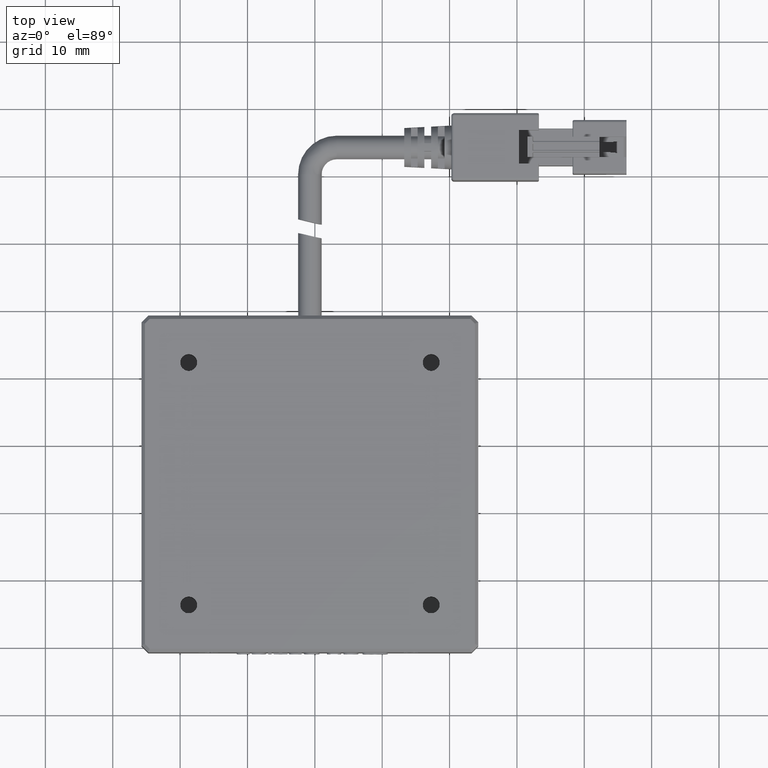
[diagram: clean part render]
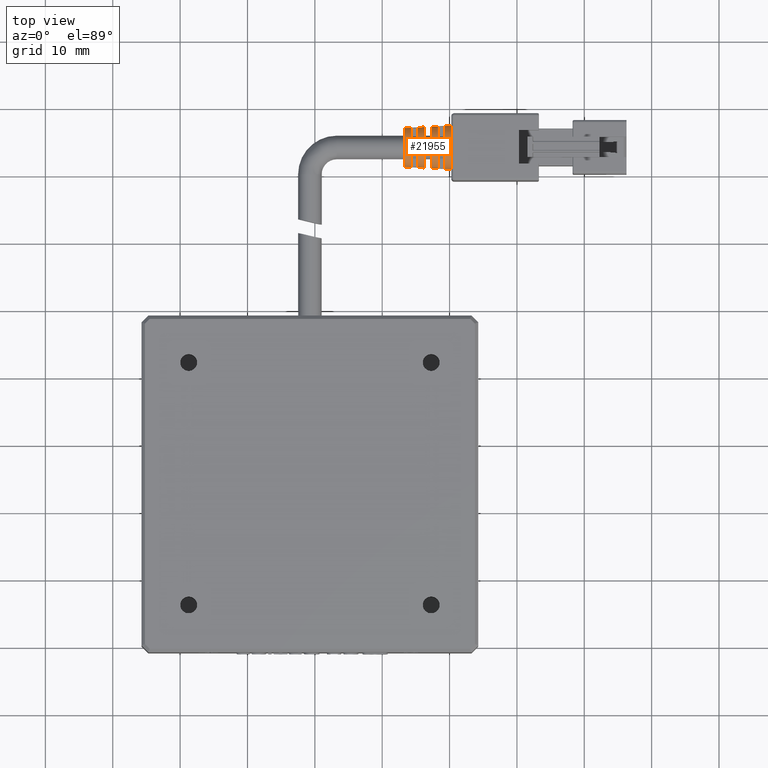
[diagram: same view with one face highlighted and labeled with its STEP entity id]
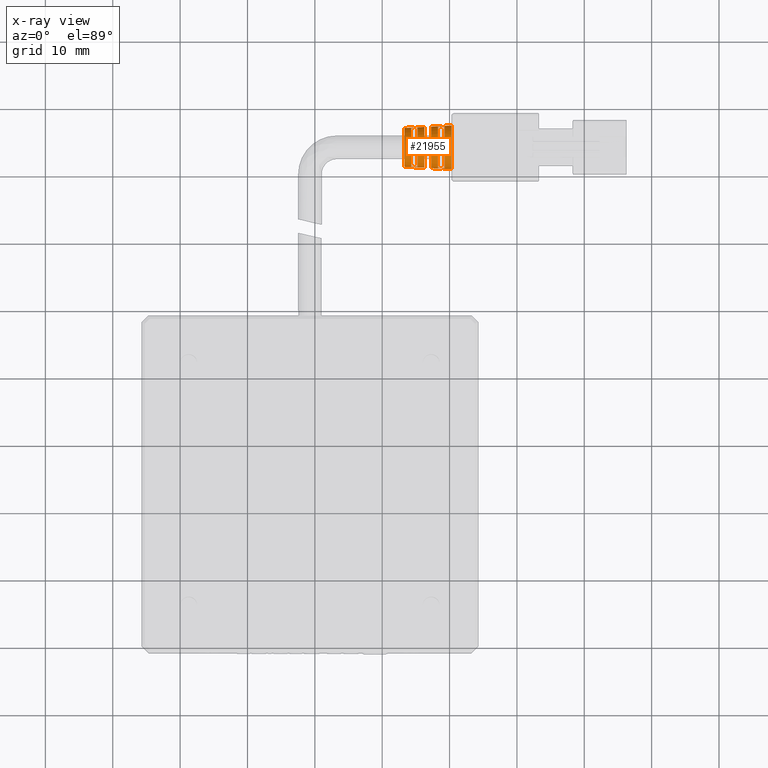
[diagram: x-ray of the same camera — body ghosted, the highlighted face saturated]
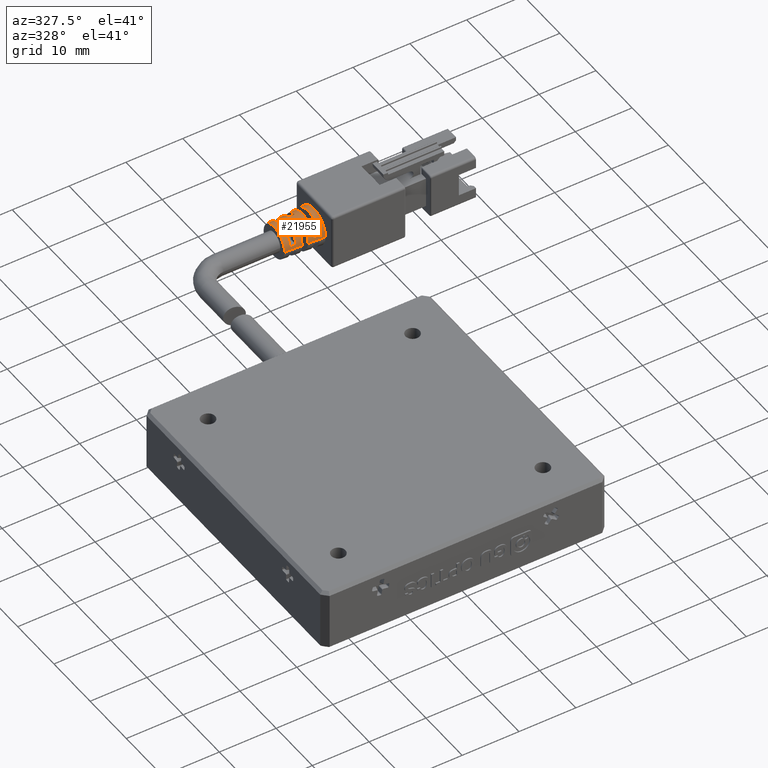
[diagram: same view with one face highlighted and labeled with its STEP entity id]
A machine part, top view. The second image highlights one B-rep face of the part: STEP entity #21955.
The next image is the same camera in x-ray: the body ghosted, the highlighted face saturated — about 0% of this face is hidden behind the body in this view.
A second angle (auxiliary view) of the same face is appended — the face is thin or edge-on in the first view.
In plain terms, the highlighted conical surface has half-angle 3 deg.
Its self-contained STEP definition (entity closure, byte-faithful):
#454 = CARTESIAN_POINT ( 'NONE',  ( 40.26702531645572200, 67.46113924050536100, -1.250000000000000900 ) ) ;
#1092 = EDGE_CURVE ( 'NONE', #28182, #5301, #14846, .T. ) ;
#1179 = B_SPLINE_CURVE_WITH_KNOTS ( 'NONE', 3,
 ( #23445, #26751, #7230, #29958 ),
 .UNSPECIFIED., .F., .F.,
 ( 4, 4 ),
 ( 1.403651546814124500E-015, 0.001001426938980516500 ),
 .UNSPECIFIED. ) ;
#1331 = DIRECTION ( 'NONE',  ( -1.000000000000000000, -0.0000000000000000000, -0.0000000000000000000 ) ) ;
#1549 = CARTESIAN_POINT ( 'NONE',  ( 40.26702531645572200, 64.21113924050634100, -1.250000000000000700 ) ) ;
#1561 = CARTESIAN_POINT ( 'NONE',  ( 33.26702531645072000, 64.21113924050634100, -1.250000000000000700 ) ) ;
#1641 = EDGE_CURVE ( 'NONE', #16105, #18689, #1179, .T. ) ;
#1700 = CARTESIAN_POINT ( 'NONE',  ( 38.60035835680047000, 61.10591946374124500, -0.6500000000000005800 ) ) ;
#1767 = CARTESIAN_POINT ( 'NONE',  ( 38.93369169520680400, 67.33414950112761200, -0.6500000000000011300 ) ) ;
#1922 = CARTESIAN_POINT ( 'NONE',  ( 39.26702531646754600, 61.07034379826750800, -0.6500000000000003600 ) ) ;
#2117 = CARTESIAN_POINT ( 'NONE',  ( 35.26702531645798900, 61.28403972792824600, -0.6500000000000011300 ) ) ;
#2400 = CARTESIAN_POINT ( 'NONE',  ( 34.26702531646981200, 67.08472120728976100, -0.6500000000000016900 ) ) ;
#2699 = DIRECTION ( 'NONE',  ( 1.000000000000000000, 0.0000000000000000000, 0.0000000000000000000 ) ) ;
#3000 = EDGE_CURVE ( 'NONE', #12893, #37839, #24078, .T. ) ;
#3253 = ORIENTED_EDGE ( 'NONE', *, *, #22560, .T. ) ;
#3297 = ORIENTED_EDGE ( 'NONE', *, *, #8633, .T. ) ;
#3675 = ORIENTED_EDGE ( 'NONE', *, *, #21201, .F. ) ;
#3766 = CARTESIAN_POINT ( 'NONE',  ( 36.60035832392478000, 63.61113924050633300, 1.748397300001395300 ) ) ;
#4403 = EDGE_CURVE ( 'NONE', #10390, #28182, #12595, .T. ) ;
#4832 = DIRECTION ( 'NONE',  ( 0.0000000000000000000, 1.000000000000000000, -6.672013369143582000E-017 ) ) ;
#4845 = DIRECTION ( 'NONE',  ( 0.0000000000000000000, 1.000000000000000000, -7.520967329303143100E-017 ) ) ;
#5301 = VERTEX_POINT ( 'NONE', #36478 ) ;
#5492 = ORIENTED_EDGE ( 'NONE', *, *, #1092, .T. ) ;
#5737 = VERTEX_POINT ( 'NONE', #35260 ) ;
#6118 = EDGE_CURVE ( 'NONE', #8930, #19131, #14750, .T. ) ;
#6156 = B_SPLINE_CURVE_WITH_KNOTS ( 'NONE', 3,
 ( #21193, #40612, #1700, #24466 ),
 .UNSPECIFIED., .F., .F.,
 ( 4, 4 ),
 ( 2.341740480690032800E-015, 0.001001423258043095100 ),
 .UNSPECIFIED. ) ;
#6171 = LINE ( 'NONE', #23978, #22484 ) ;
#6178 = EDGE_CURVE ( 'NONE', #5301, #23127, #17281, .T. ) ;
#6838 = VECTOR ( 'NONE', #19892, 1000.000000000000200 ) ;
#7045 = CARTESIAN_POINT ( 'NONE',  ( 36.26702531644617300, 63.61113924050633300, 1.730577619171422600 ) ) ;
#7230 = CARTESIAN_POINT ( 'NONE',  ( 36.60035832392478000, 64.81113924050633600, 1.748397300001394800 ) ) ;
#7293 = DIRECTION ( 'NONE',  ( -1.000000000000000000, -0.0000000000000000000, -0.0000000000000000000 ) ) ;
#7325 = AXIS2_PLACEMENT_3D ( 'NONE', #1561, #24338, #4845 ) ;
#8081 = VERTEX_POINT ( 'NONE', #1922 ) ;
#8154 = EDGE_LOOP ( 'NONE', ( #10752, #23350, #13428, #25673 ) ) ;
#8633 = EDGE_CURVE ( 'NONE', #18689, #13586, #39305, .T. ) ;
#8904 = VERTEX_POINT ( 'NONE', #12593 ) ;
#8930 = VERTEX_POINT ( 'NONE', #28904 ) ;
#9361 = EDGE_CURVE ( 'NONE', #13519, #33482, #21103, .T. ) ;
#9881 = ORIENTED_EDGE ( 'NONE', *, *, #31264, .T. ) ;
#10142 = DIRECTION ( 'NONE',  ( 1.000000000000000000, 0.0000000000000000000, 0.0000000000000000000 ) ) ;
#10247 = CARTESIAN_POINT ( 'NONE',  ( 40.26702531622834900, 67.46113924049343800, -1.250000000000000900 ) ) ;
#10351 = CARTESIAN_POINT ( 'NONE',  ( 37.26702531646699200, 63.61113924050633300, 1.784018372051399800 ) ) ;
#10390 = VERTEX_POINT ( 'NONE', #37936 ) ;
#10752 = ORIENTED_EDGE ( 'NONE', *, *, #3000, .T. ) ;
#11125 = CARTESIAN_POINT ( 'NONE',  ( 35.26702531645798900, 61.28403972792824600, -0.6500000000000011300 ) ) ;
#12593 = CARTESIAN_POINT ( 'NONE',  ( 37.26702531646982000, 67.30391590265740800, -1.250000000000000900 ) ) ;
#12595 = CIRCLE ( 'NONE', #37068, 3.040368882866448400 ) ;
#12893 = VERTEX_POINT ( 'NONE', #16320 ) ;
#13184 = CARTESIAN_POINT ( 'NONE',  ( 36.26702531644617300, 63.61113924050633300, 1.730577619171422600 ) ) ;
#13414 = EDGE_CURVE ( 'NONE', #8081, #18089, #6156, .T. ) ;
#13428 = ORIENTED_EDGE ( 'NONE', *, *, #13414, .T. ) ;
#13519 = VERTEX_POINT ( 'NONE', #2400 ) ;
#13586 = VERTEX_POINT ( 'NONE', #35067 ) ;
#14019 = CARTESIAN_POINT ( 'NONE',  ( 36.26702531644042400, 64.81113924050633600, 1.730577619171115100 ) ) ;
#14373 = CARTESIAN_POINT ( 'NONE',  ( 34.60035828589212100, 61.31971129328074700, -0.6500000000000012400 ) ) ;
#14418 = EDGE_CURVE ( 'NONE', #23127, #8930, #33812, .T. ) ;
#14437 = DIRECTION ( 'NONE',  ( -1.000000000000000000, -0.0000000000000000000, -0.0000000000000000000 ) ) ;
#14750 = CIRCLE ( 'NONE', #33084, 3.249999999999017700 ) ;
#14846 = B_SPLINE_CURVE_WITH_KNOTS ( 'NONE', 3,
 ( #7045, #3766, #23259, #10351 ),
 .UNSPECIFIED., .F., .F.,
 ( 4, 4 ),
 ( 1.945664656350847900E-015, 0.001001426938979536800 ),
 .UNSPECIFIED. ) ;
#15102 = CARTESIAN_POINT ( 'NONE',  ( 34.26702531646981200, 67.08472120728976100, -0.6500000000000016900 ) ) ;
#15175 = CARTESIAN_POINT ( 'NONE',  ( 40.26702531622834900, 60.96113924051923800, -1.250000000000000000 ) ) ;
#15612 = CARTESIAN_POINT ( 'NONE',  ( 34.26702531648391700, 64.21113924050634100, -1.250000000000000700 ) ) ;
#15938 = DIRECTION ( 'NONE',  ( 1.000000000000000000, 0.0000000000000000000, 0.0000000000000000000 ) ) ;
#16105 = VERTEX_POINT ( 'NONE', #23432 ) ;
#16320 = CARTESIAN_POINT ( 'NONE',  ( 38.26702531645094800, 67.29856295140706400, -0.6500000000000011300 ) ) ;
#16701 = AXIS2_PLACEMENT_3D ( 'NONE', #35356, #15938, #38612 ) ;
#17281 = CIRCLE ( 'NONE', #23581, 3.092776662151075500 ) ;
#17383 = AXIS2_PLACEMENT_3D ( 'NONE', #33898, #14437, #37133 ) ;
#17575 = CARTESIAN_POINT ( 'NONE',  ( 40.26702531622834900, 64.21113924050634100, -1.250000000000000700 ) ) ;
#17832 = EDGE_LOOP ( 'NONE', ( #3253, #41933, #34072, #5492, #27858, #28515, #23843, #37278, #9881, #33595, #3297, #3675 ) ) ;
#17839 = AXIS2_PLACEMENT_3D ( 'NONE', #22202, #2699, #25494 ) ;
#17891 = VECTOR ( 'NONE', #29660, 1000.000000000000200 ) ;
#18048 = ORIENTED_EDGE ( 'NONE', *, *, #40220, .T. ) ;
#18089 = VERTEX_POINT ( 'NONE', #36313 ) ;
#18220 = DIRECTION ( 'NONE',  ( 1.000000000000000000, 0.0000000000000000000, 0.0000000000000000000 ) ) ;
#18271 = FACE_BOUND ( 'NONE', #28470, .T. ) ;
#18689 = VERTEX_POINT ( 'NONE', #14019 ) ;
#18756 = EDGE_CURVE ( 'NONE', #8904, #19131, #6171, .T. ) ;
#18905 = DIRECTION ( 'NONE',  ( 0.0000000000000000000, 1.000000000000000000, 1.698940350408131500E-015 ) ) ;
#19131 = VERTEX_POINT ( 'NONE', #454 ) ;
#19156 = ORIENTED_EDGE ( 'NONE', *, *, #24068, .T. ) ;
#19892 = DIRECTION ( 'NONE',  ( 0.9986295347545816000, -0.05233595624279531500, 1.094872672590911800E-017 ) ) ;
#20667 = AXIS2_PLACEMENT_3D ( 'NONE', #20827, #1331, #24101 ) ;
#20827 = CARTESIAN_POINT ( 'NONE',  ( 38.26702531644617300, 64.21113924050634100, -1.250000000000000700 ) ) ;
#21103 = B_SPLINE_CURVE_WITH_KNOTS ( 'NONE', 3,
 ( #15102, #24779, #40928, #37798 ),
 .UNSPECIFIED., .F., .F.,
 ( 4, 4 ),
 ( 2.821323884305459600E-015, 0.001001431039903069900 ),
 .UNSPECIFIED. ) ;
#21193 = CARTESIAN_POINT ( 'NONE',  ( 39.26702531646754600, 61.07034379826750800, -0.6500000000000003600 ) ) ;
#21201 = EDGE_CURVE ( 'NONE', #29925, #13586, #35141, .T. ) ;
#21666 = CARTESIAN_POINT ( 'NONE',  ( 33.26702531645072000, 61.32799369548783400, -1.250000000000000000 ) ) ;
#21955 = ADVANCED_FACE ( 'NONE', ( #26902, #18271, #35486 ), #39015, .T. ) ;
#22202 = CARTESIAN_POINT ( 'NONE',  ( 35.26702531646027000, 64.21113924050634100, -1.250000000000000700 ) ) ;
#22484 = VECTOR ( 'NONE', #27242, 1000.000000000000200 ) ;
#22560 = EDGE_CURVE ( 'NONE', #29925, #23570, #25289, .T. ) ;
#23127 = VERTEX_POINT ( 'NONE', #25291 ) ;
#23259 = CARTESIAN_POINT ( 'NONE',  ( 36.93369166311235600, 63.61113924050633300, 1.766210776928611700 ) ) ;
#23298 = CIRCLE ( 'NONE', #16701, 3.092776662151075500 ) ;
#23350 = ORIENTED_EDGE ( 'NONE', *, *, #32603, .T. ) ;
#23432 = CARTESIAN_POINT ( 'NONE',  ( 37.26702531646277100, 64.81113924050633600, 1.784018372051174200 ) ) ;
#23445 = CARTESIAN_POINT ( 'NONE',  ( 37.26702531646277100, 64.81113924050633600, 1.784018372051174200 ) ) ;
#23570 = VERTEX_POINT ( 'NONE', #21666 ) ;
#23581 = AXIS2_PLACEMENT_3D ( 'NONE', #37622, #18220, #40904 ) ;
#23843 = ORIENTED_EDGE ( 'NONE', *, *, #6118, .T. ) ;
#23978 = CARTESIAN_POINT ( 'NONE',  ( 40.26702531622834900, 67.46113924049343800, -1.250000000000000900 ) ) ;
#24068 = EDGE_CURVE ( 'NONE', #33482, #29614, #38491, .T. ) ;
#24078 = B_SPLINE_CURVE_WITH_KNOTS ( 'NONE', 3,
 ( #27784, #24541, #1767, #31027 ),
 .UNSPECIFIED., .F., .F.,
 ( 4, 4 ),
 ( 9.453208419344606800E-016, 0.001001423258045922700 ),
 .UNSPECIFIED. ) ;
#24101 = DIRECTION ( 'NONE',  ( 0.0000000000000000000, 1.000000000000000000, -6.894363066298365700E-017 ) ) ;
#24323 = DIRECTION ( 'NONE',  ( -1.000000000000000000, -0.0000000000000000000, -0.0000000000000000000 ) ) ;
#24338 = DIRECTION ( 'NONE',  ( 1.000000000000000000, 0.0000000000000000000, 0.0000000000000000000 ) ) ;
#24466 = CARTESIAN_POINT ( 'NONE',  ( 38.26702531644808400, 61.12371552960575400, -0.6500000000000006900 ) ) ;
#24541 = CARTESIAN_POINT ( 'NONE',  ( 38.60035835680046300, 67.31635901727143800, -0.6500000000000010200 ) ) ;
#24779 = CARTESIAN_POINT ( 'NONE',  ( 34.60035828589212100, 67.10256718773193500, -0.6500000000000016900 ) ) ;
#25289 = CIRCLE ( 'NONE', #7325, 2.883145545018506200 ) ;
#25291 = CARTESIAN_POINT ( 'NONE',  ( 37.26702531646982000, 61.11836257835526000, -1.250000000000000000 ) ) ;
#25494 = DIRECTION ( 'NONE',  ( 0.0000000000000000000, 1.000000000000000000, -7.257137123938718400E-017 ) ) ;
#25673 = ORIENTED_EDGE ( 'NONE', *, *, #38894, .T. ) ;
#26584 = CARTESIAN_POINT ( 'NONE',  ( 40.26702531622834900, 60.96113924051923800, -1.250000000000000000 ) ) ;
#26751 = CARTESIAN_POINT ( 'NONE',  ( 36.93369166311235600, 64.81113924050633600, 1.766210776928611700 ) ) ;
#26809 = CARTESIAN_POINT ( 'NONE',  ( 36.26702531643662300, 64.21113924050634100, -1.250000000000000700 ) ) ;
#26902 = FACE_BOUND ( 'NONE', #8154, .T. ) ;
#27242 = DIRECTION ( 'NONE',  ( 0.9986295347545816000, 0.05233595624279531500, -4.539420596603596700E-018 ) ) ;
#27784 = CARTESIAN_POINT ( 'NONE',  ( 38.26702531645094800, 67.29856295140706400, -0.6500000000000011300 ) ) ;
#27858 = ORIENTED_EDGE ( 'NONE', *, *, #6178, .T. ) ;
#28182 = VERTEX_POINT ( 'NONE', #13184 ) ;
#28470 = EDGE_LOOP ( 'NONE', ( #40722, #19156, #36707, #18048 ) ) ;
#28515 = ORIENTED_EDGE ( 'NONE', *, *, #14418, .T. ) ;
#28904 = CARTESIAN_POINT ( 'NONE',  ( 40.26702531645572200, 60.96113924050732900, -1.250000000000000000 ) ) ;
#29543 = CARTESIAN_POINT ( 'NONE',  ( 39.26702531647936900, 64.21113924050634100, -1.250000000000000700 ) ) ;
#29614 = VERTEX_POINT ( 'NONE', #2117 ) ;
#29660 = DIRECTION ( 'NONE',  ( 0.9986295347545816000, 0.05233595624279531500, -4.539420596603596700E-018 ) ) ;
#29925 = VERTEX_POINT ( 'NONE', #36702 ) ;
#29958 = CARTESIAN_POINT ( 'NONE',  ( 36.26702531644042400, 64.81113924050633600, 1.730577619171115100 ) ) ;
#30019 = DIRECTION ( 'NONE',  ( 0.0000000000000000000, 1.000000000000000000, 1.711690465343780600E-015 ) ) ;
#30543 = CARTESIAN_POINT ( 'NONE',  ( 34.93369162600836100, 61.30187223562795400, -0.6500000000000011300 ) ) ;
#30584 = DIRECTION ( 'NONE',  ( 0.0000000000000000000, 1.000000000000000000, -6.672013369168055200E-017 ) ) ;
#30873 = CIRCLE ( 'NONE', #20667, 3.145184441432733000 ) ;
#31027 = CARTESIAN_POINT ( 'NONE',  ( 39.26702531647462300, 67.35193468274553700, -0.6500000000000010200 ) ) ;
#31264 = EDGE_CURVE ( 'NONE', #8904, #16105, #23298, .T. ) ;
#32176 = VECTOR ( 'NONE', #34765, 1000.000000000000200 ) ;
#32324 = AXIS2_PLACEMENT_3D ( 'NONE', #17575, #33741, #30584 ) ;
#32603 = EDGE_CURVE ( 'NONE', #37839, #8081, #41597, .T. ) ;
#32822 = DIRECTION ( 'NONE',  ( 0.0000000000000000000, 1.000000000000000000, -6.781366088276698700E-017 ) ) ;
#33084 = AXIS2_PLACEMENT_3D ( 'NONE', #1549, #24323, #4832 ) ;
#33482 = VERTEX_POINT ( 'NONE', #41146 ) ;
#33595 = ORIENTED_EDGE ( 'NONE', *, *, #1641, .T. ) ;
#33741 = DIRECTION ( 'NONE',  ( 1.000000000000000000, 0.0000000000000000000, 0.0000000000000000000 ) ) ;
#33812 = LINE ( 'NONE', #26584, #6838 ) ;
#33898 = CARTESIAN_POINT ( 'NONE',  ( 36.26702531643662300, 64.21113924050634100, -1.250000000000000700 ) ) ;
#34072 = ORIENTED_EDGE ( 'NONE', *, *, #4403, .T. ) ;
#34373 = AXIS2_PLACEMENT_3D ( 'NONE', #15612, #38279, #18905 ) ;
#34698 = CARTESIAN_POINT ( 'NONE',  ( 39.26702531647462300, 67.35193468274553700, -0.6500000000000010200 ) ) ;
#34765 = DIRECTION ( 'NONE',  ( 0.9986295347545816000, -0.05233595624279531500, 1.094872672590911800E-017 ) ) ;
#35067 = CARTESIAN_POINT ( 'NONE',  ( 36.26702531643662300, 67.25150812337278700, -1.250000000000000900 ) ) ;
#35108 = EDGE_CURVE ( 'NONE', #23570, #10390, #40841, .T. ) ;
#35141 = LINE ( 'NONE', #10247, #17891 ) ;
#35260 = CARTESIAN_POINT ( 'NONE',  ( 34.26702531647827500, 61.33755727372246000, -0.6500000000000012400 ) ) ;
#35356 = CARTESIAN_POINT ( 'NONE',  ( 37.26702531646982000, 64.21113924050634100, -1.250000000000000700 ) ) ;
#35486 = FACE_OUTER_BOUND ( 'NONE', #17832, .T. ) ;
#36054 = AXIS2_PLACEMENT_3D ( 'NONE', #29543, #10142, #32822 ) ;
#36313 = CARTESIAN_POINT ( 'NONE',  ( 38.26702531644808400, 61.12371552960575400, -0.6500000000000006900 ) ) ;
#36478 = CARTESIAN_POINT ( 'NONE',  ( 37.26702531646699200, 63.61113924050633300, 1.784018372051399800 ) ) ;
#36575 = EDGE_CURVE ( 'NONE', #29614, #5737, #41272, .T. ) ;
#36702 = CARTESIAN_POINT ( 'NONE',  ( 33.26702531645072000, 67.09428478552484900, -1.250000000000000900 ) ) ;
#36707 = ORIENTED_EDGE ( 'NONE', *, *, #36575, .T. ) ;
#37068 = AXIS2_PLACEMENT_3D ( 'NONE', #26809, #7293, #30019 ) ;
#37073 = CARTESIAN_POINT ( 'NONE',  ( 34.26702531647827500, 61.33755727372246000, -0.6500000000000012400 ) ) ;
#37133 = DIRECTION ( 'NONE',  ( 0.0000000000000000000, 1.000000000000000000, -9.984861047838719200E-016 ) ) ;
#37196 = CIRCLE ( 'NONE', #34373, 2.935553324303133300 ) ;
#37278 = ORIENTED_EDGE ( 'NONE', *, *, #18756, .F. ) ;
#37622 = CARTESIAN_POINT ( 'NONE',  ( 37.26702531646982000, 64.21113924050634100, -1.250000000000000700 ) ) ;
#37798 = CARTESIAN_POINT ( 'NONE',  ( 35.26702531645936700, 67.13823875308449400, -0.6500000000000015800 ) ) ;
#37839 = VERTEX_POINT ( 'NONE', #34698 ) ;
#37936 = CARTESIAN_POINT ( 'NONE',  ( 36.26702531643662300, 61.17077035763989600, -1.250000000000000000 ) ) ;
#38279 = DIRECTION ( 'NONE',  ( -1.000000000000000000, -0.0000000000000000000, -0.0000000000000000000 ) ) ;
#38491 = CIRCLE ( 'NONE', #17839, 2.987961103584790800 ) ;
#38612 = DIRECTION ( 'NONE',  ( 0.0000000000000000000, 1.000000000000000000, -7.011189561495362000E-017 ) ) ;
#38894 = EDGE_CURVE ( 'NONE', #18089, #12893, #30873, .T. ) ;
#39015 = CONICAL_SURFACE ( 'NONE', #32324, 3.249999999987096500, 0.05235987755968116900 ) ;
#39305 = CIRCLE ( 'NONE', #17383, 3.040368882866448400 ) ;
#40220 = EDGE_CURVE ( 'NONE', #5737, #13519, #37196, .T. ) ;
#40612 = CARTESIAN_POINT ( 'NONE',  ( 38.93369169520680400, 61.08812897988507700, -0.6500000000000004700 ) ) ;
#40722 = ORIENTED_EDGE ( 'NONE', *, *, #9361, .T. ) ;
#40841 = LINE ( 'NONE', #15175, #32176 ) ;
#40904 = DIRECTION ( 'NONE',  ( 0.0000000000000000000, 1.000000000000000000, -7.011189561495362000E-017 ) ) ;
#40928 = CARTESIAN_POINT ( 'NONE',  ( 34.93369162600836100, 67.12040624538471400, -0.6500000000000015800 ) ) ;
#41146 = CARTESIAN_POINT ( 'NONE',  ( 35.26702531645936700, 67.13823875308449400, -0.6500000000000015800 ) ) ;
#41272 = B_SPLINE_CURVE_WITH_KNOTS ( 'NONE', 3,
 ( #11125, #30543, #14373, #37073 ),
 .UNSPECIFIED., .F., .F.,
 ( 4, 4 ),
 ( 4.726604209672303400E-016, 0.001001431039896517200 ),
 .UNSPECIFIED. ) ;
#41597 = CIRCLE ( 'NONE', #36054, 3.197592220717360200 ) ;
#41933 = ORIENTED_EDGE ( 'NONE', *, *, #35108, .T. ) ;